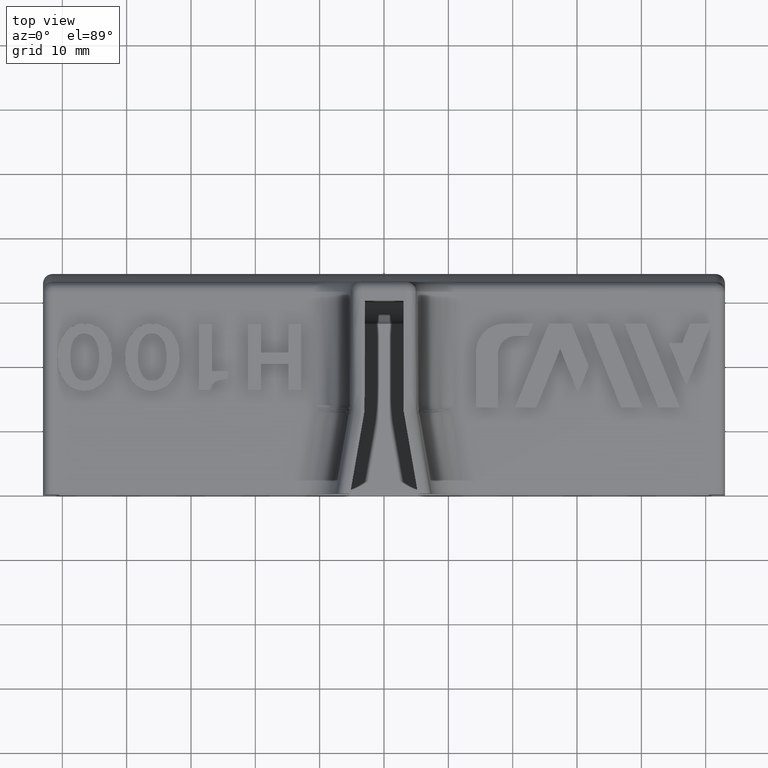
[diagram: clean part render]
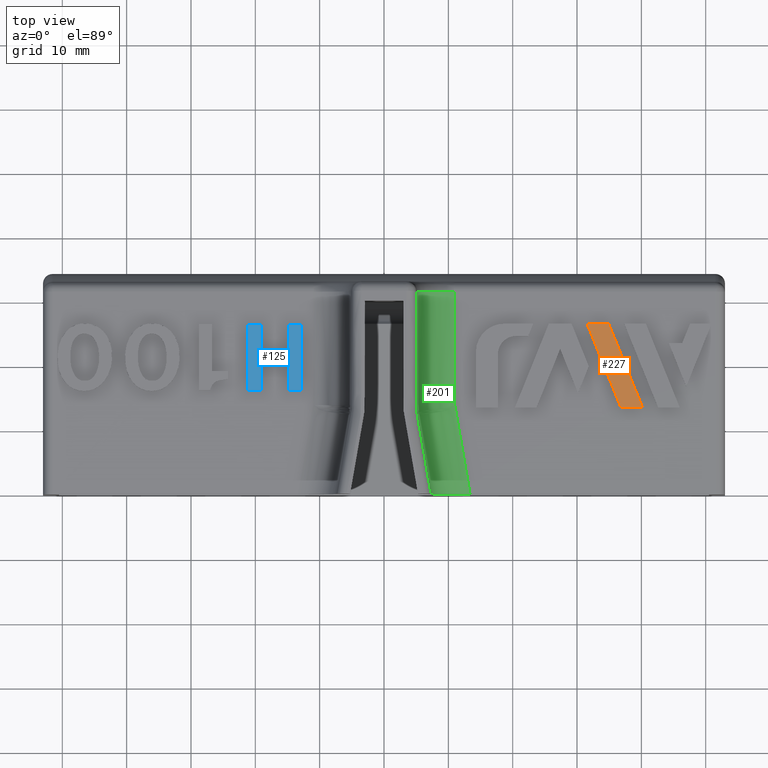
[diagram: same view with three faces highlighted in distinct colors, each labeled with its STEP entity id]
A machine part, top view with three faces highlighted in distinct colors.
Their STEP definitions:

[orange] entity #227 — the highlighted planar face has unit normal (0, 0, -1).
#227=ADVANCED_FACE('',(#478),#479,.F.);
#478=FACE_OUTER_BOUND('',#1583,.T.);
#479=PLANE('',#1584);
#1583=EDGE_LOOP('',(#2766,#2767,#2768,#2769));
#1584=AXIS2_PLACEMENT_3D('',#2770,#2771,#2772);
#2766=ORIENTED_EDGE('',*,*,#3131,.F.);
#2767=ORIENTED_EDGE('',*,*,#3140,.F.);
#2768=ORIENTED_EDGE('',*,*,#3137,.F.);
#2769=ORIENTED_EDGE('',*,*,#3134,.F.);
#2770=CARTESIAN_POINT('',(14.2878206641581,13.4986448545981,6.5005));
#2771=DIRECTION('',(2.84905114828971E-32,1.71410341203709E-16,-1.0));
#2772=DIRECTION('',(-1.0,3.05640636956162E-16,2.38994543834777E-32));
#3131=EDGE_CURVE('',#3590,#3592,#3593,.T.);
#3134=EDGE_CURVE('',#3592,#3597,#3598,.T.);
#3137=EDGE_CURVE('',#3597,#3602,#3603,.T.);
#3140=EDGE_CURVE('',#3602,#3590,#3606,.T.);
#3590=VERTEX_POINT('',#4913);
#3592=VERTEX_POINT('',#4916);
#3593=LINE('',#4917,#4918);
#3597=VERTEX_POINT('',#4924);
#3598=LINE('',#4925,#4926);
#3602=VERTEX_POINT('',#4932);
#3603=LINE('',#4933,#4934);
#3606=LINE('',#4939,#4940);
#4913=CARTESIAN_POINT('',(34.9240970111796,26.4941301454018,6.5005));
#4916=CARTESIAN_POINT('',(40.1751758170018,13.4986448545981,6.5005));
#4917=CARTESIAN_POINT('',(34.9240970111796,26.4941301454018,6.5005));
#4918=VECTOR('',#5274,1000.0);
#4924=CARTESIAN_POINT('',(36.8170544880509,13.4986448545981,6.5005));
#4925=CARTESIAN_POINT('',(40.1751758170018,13.4986448545981,6.5005));
#4926=VECTOR('',#5277,1000.0);
#4932=CARTESIAN_POINT('',(31.5659756822287,26.4941301454018,6.5005));
#4933=CARTESIAN_POINT('',(36.8170544880509,13.4986448545981,6.5005));
#4934=VECTOR('',#5280,1000.0);
#4939=CARTESIAN_POINT('',(31.5659756822287,26.4941301454018,6.5005));
#4940=VECTOR('',#5283,1000.0);
#5274=DIRECTION('',(0.37464105840902,-0.927169929060563,-1.58926513894091E-16));
#5277=DIRECTION('',(-1.0,4.66969920222005E-16,1.68621565400355E-31));
#5280=DIRECTION('',(-0.374641058409019,0.927169929060563,1.58926513894091E-16));
#5283=DIRECTION('',(1.0,-4.66969920222004E-16,2.85936609048986E-32));

[blue] entity #125 — the highlighted planar face has unit normal (0, 0, 1).
#125=ADVANCED_FACE('',(#262),#263,.T.);
#262=FACE_OUTER_BOUND('',#531,.T.);
#263=PLANE('',#532);
#531=EDGE_LOOP('',(#1744,#1745,#1746,#1747,#1748,#1749,#1750,#1751,#1752,#1753,#1754,#1755));
#532=AXIS2_PLACEMENT_3D('',#1756,#1757,#1758);
#1744=ORIENTED_EDGE('',*,*,#2905,.F.);
#1745=ORIENTED_EDGE('',*,*,#2906,.F.);
#1746=ORIENTED_EDGE('',*,*,#2907,.F.);
#1747=ORIENTED_EDGE('',*,*,#2908,.F.);
#1748=ORIENTED_EDGE('',*,*,#2909,.F.);
#1749=ORIENTED_EDGE('',*,*,#2910,.F.);
#1750=ORIENTED_EDGE('',*,*,#2911,.F.);
#1751=ORIENTED_EDGE('',*,*,#2912,.F.);
#1752=ORIENTED_EDGE('',*,*,#2913,.F.);
#1753=ORIENTED_EDGE('',*,*,#2914,.F.);
#1754=ORIENTED_EDGE('',*,*,#2915,.F.);
#1755=ORIENTED_EDGE('',*,*,#2916,.F.);
#1756=CARTESIAN_POINT('',(-13.875,16.15,6.5));
#1757=DIRECTION('',(1.43492962746861E-48,6.12323399573677E-17,1.0));
#1758=DIRECTION('',(1.22464679914735E-16,1.0,-6.12323399573677E-17));
#2905=EDGE_CURVE('',#3243,#3244,#3245,.T.);
#2906=EDGE_CURVE('',#3246,#3243,#3247,.T.);
#2907=EDGE_CURVE('',#3248,#3246,#3249,.T.);
#2908=EDGE_CURVE('',#3250,#3248,#3251,.T.);
#2909=EDGE_CURVE('',#3252,#3250,#3253,.T.);
#2910=EDGE_CURVE('',#3254,#3252,#3255,.T.);
#2911=EDGE_CURVE('',#3256,#3254,#3257,.T.);
#2912=EDGE_CURVE('',#3258,#3256,#3259,.T.);
#2913=EDGE_CURVE('',#3260,#3258,#3261,.T.);
#2914=EDGE_CURVE('',#3262,#3260,#3263,.T.);
#2915=EDGE_CURVE('',#3264,#3262,#3265,.T.);
#2916=EDGE_CURVE('',#3244,#3264,#3266,.T.);
#3243=VERTEX_POINT('',#3818);
#3244=VERTEX_POINT('',#3819);
#3245=B_SPLINE_CURVE_WITH_KNOTS('',2,(#3820,#3821,#3822),.UNSPECIFIED.,.F.,.F.,(3,3),(0.0,1.0),.UNSPECIFIED.);
#3246=VERTEX_POINT('',#3823);
#3247=B_SPLINE_CURVE_WITH_KNOTS('',2,(#3824,#3825,#3826),.UNSPECIFIED.,.F.,.F.,(3,3),(11.0,12.0),.UNSPECIFIED.);
#3248=VERTEX_POINT('',#3827);
#3249=B_SPLINE_CURVE_WITH_KNOTS('',2,(#3828,#3829,#3830),.UNSPECIFIED.,.F.,.F.,(3,3),(10.0,11.0),.UNSPECIFIED.);
#3250=VERTEX_POINT('',#3831);
#3251=B_SPLINE_CURVE_WITH_KNOTS('',2,(#3832,#3833,#3834),.UNSPECIFIED.,.F.,.F.,(3,3),(9.0,10.0),.UNSPECIFIED.);
#3252=VERTEX_POINT('',#3835);
#3253=B_SPLINE_CURVE_WITH_KNOTS('',2,(#3836,#3837,#3838),.UNSPECIFIED.,.F.,.F.,(3,3),(8.0,9.0),.UNSPECIFIED.);
#3254=VERTEX_POINT('',#3839);
#3255=B_SPLINE_CURVE_WITH_KNOTS('',2,(#3840,#3841,#3842),.UNSPECIFIED.,.F.,.F.,(3,3),(7.0,8.0),.UNSPECIFIED.);
#3256=VERTEX_POINT('',#3843);
#3257=B_SPLINE_CURVE_WITH_KNOTS('',2,(#3844,#3845,#3846),.UNSPECIFIED.,.F.,.F.,(3,3),(6.0,7.0),.UNSPECIFIED.);
#3258=VERTEX_POINT('',#3847);
#3259=B_SPLINE_CURVE_WITH_KNOTS('',2,(#3848,#3849,#3850),.UNSPECIFIED.,.F.,.F.,(3,3),(5.0,6.0),.UNSPECIFIED.);
#3260=VERTEX_POINT('',#3851);
#3261=B_SPLINE_CURVE_WITH_KNOTS('',2,(#3852,#3853,#3854),.UNSPECIFIED.,.F.,.F.,(3,3),(4.0,5.0),.UNSPECIFIED.);
#3262=VERTEX_POINT('',#3855);
#3263=B_SPLINE_CURVE_WITH_KNOTS('',2,(#3856,#3857,#3858),.UNSPECIFIED.,.F.,.F.,(3,3),(3.0,4.0),.UNSPECIFIED.);
#3264=VERTEX_POINT('',#3859);
#3265=B_SPLINE_CURVE_WITH_KNOTS('',2,(#3860,#3861,#3862),.UNSPECIFIED.,.F.,.F.,(3,3),(2.0,3.0),.UNSPECIFIED.);
#3266=B_SPLINE_CURVE_WITH_KNOTS('',2,(#3863,#3864,#3865),.UNSPECIFIED.,.F.,.F.,(3,3),(1.0,2.0),.UNSPECIFIED.);
#3818=CARTESIAN_POINT('',(-12.875,16.15,6.5));
#3819=CARTESIAN_POINT('',(-14.875,16.15,6.5));
#3820=CARTESIAN_POINT('',(-12.875,16.15,6.5));
#3821=CARTESIAN_POINT('',(-13.875,16.15,6.5));
#3822=CARTESIAN_POINT('',(-14.875,16.15,6.5));
#3823=CARTESIAN_POINT('',(-12.875,26.45,6.5));
#3824=CARTESIAN_POINT('',(-12.875,26.45,6.5));
#3825=CARTESIAN_POINT('',(-12.875,21.3,6.5));
#3826=CARTESIAN_POINT('',(-12.875,16.15,6.5));
#3827=CARTESIAN_POINT('',(-14.875,26.45,6.5));
#3828=CARTESIAN_POINT('',(-14.875,26.45,6.5));
#3829=CARTESIAN_POINT('',(-13.875,26.45,6.5));
#3830=CARTESIAN_POINT('',(-12.875,26.45,6.5));
#3831=CARTESIAN_POINT('',(-14.875,22.0,6.5));
#3832=CARTESIAN_POINT('',(-14.875,22.0,6.5));
#3833=CARTESIAN_POINT('',(-14.875,24.225,6.5));
#3834=CARTESIAN_POINT('',(-14.875,26.45,6.5));
#3835=CARTESIAN_POINT('',(-19.125,22.0,6.5));
#3836=CARTESIAN_POINT('',(-19.125,22.0,6.5));
#3837=CARTESIAN_POINT('',(-17.0,22.0,6.5));
#3838=CARTESIAN_POINT('',(-14.875,22.0,6.5));
#3839=CARTESIAN_POINT('',(-19.125,26.45,6.5));
#3840=CARTESIAN_POINT('',(-19.125,26.45,6.5));
#3841=CARTESIAN_POINT('',(-19.125,24.225,6.5));
#3842=CARTESIAN_POINT('',(-19.125,22.0,6.5));
#3843=CARTESIAN_POINT('',(-21.125,26.45,6.5));
#3844=CARTESIAN_POINT('',(-21.125,26.45,6.5));
#3845=CARTESIAN_POINT('',(-20.125,26.45,6.5));
#3846=CARTESIAN_POINT('',(-19.125,26.45,6.5));
#3847=CARTESIAN_POINT('',(-21.125,16.15,6.5));
#3848=CARTESIAN_POINT('',(-21.125,16.15,6.5));
#3849=CARTESIAN_POINT('',(-21.125,21.3,6.5));
#3850=CARTESIAN_POINT('',(-21.125,26.45,6.5));
#3851=CARTESIAN_POINT('',(-19.125,16.15,6.5));
#3852=CARTESIAN_POINT('',(-19.125,16.15,6.5));
#3853=CARTESIAN_POINT('',(-20.125,16.15,6.5));
#3854=CARTESIAN_POINT('',(-21.125,16.15,6.5));
#3855=CARTESIAN_POINT('',(-19.125,20.25,6.5));
#3856=CARTESIAN_POINT('',(-19.125,20.25,6.5));
#3857=CARTESIAN_POINT('',(-19.125,18.2,6.5));
#3858=CARTESIAN_POINT('',(-19.125,16.15,6.5));
#3859=CARTESIAN_POINT('',(-14.875,20.25,6.5));
#3860=CARTESIAN_POINT('',(-14.875,20.25,6.5));
#3861=CARTESIAN_POINT('',(-17.0,20.25,6.5));
#3862=CARTESIAN_POINT('',(-19.125,20.25,6.5));
#3863=CARTESIAN_POINT('',(-14.875,16.15,6.5));
#3864=CARTESIAN_POINT('',(-14.875,18.2,6.5));
#3865=CARTESIAN_POINT('',(-14.875,20.25,6.5));

[green] entity #201 — the highlighted face is a freeform B-spline surface patch.
#201=ADVANCED_FACE('',(#423,#424,#425,#426),#427,.F.);
#423=FACE_OUTER_BOUND('',#1399,.T.);
#424=FACE_BOUND('',#1400,.T.);
#425=FACE_BOUND('',#1401,.T.);
#426=FACE_BOUND('',#1402,.T.);
#427=B_SPLINE_SURFACE_WITH_KNOTS('',3,3,((#1403,#1404,#1405,#1406,#1407,#1408,#1409,#1410,#1411,#1412,#1413,#1414,#1415),(#1416,#1417,#1418,#1419,#1420,#1421,#1422,#1423,#1424,#1425,#1426,#1427,#1428),(#1429,#1430,#1431,#1432,#1433,#1434,#1435,#1436,#1437,#1438,#1439,#1440,#1441),(#1442,#1443,#1444,#1445,#1446,#1447,#1448,#1449,#1450,#1451,#1452,#1453,#1454),(#1455,#1456,#1457,#1458,#1459,#1460,#1461,#1462,#1463,#1464,#1465,#1466,#1467),(#1468,#1469,#1470,#1471,#1472,#1473,#1474,#1475,#1476,#1477,#1478,#1479,#1480),(#1481,#1482,#1483,#1484,#1485,#1486,#1487,#1488,#1489,#1490,#1491,#1492,#1493),(#1494,#1495,#1496,#1497,#1498,#1499,#1500,#1501,#1502,#1503,#1504,#1505,#1506),(#1507,#1508,#1509,#1510,#1511,#1512,#1513,#1514,#1515,#1516,#1517,#1518,#1519),(#1520,#1521,#1522,#1523,#1524,#1525,#1526,#1527,#1528,#1529,#1530,#1531,#1532)),.UNSPECIFIED.,.F.,.F.,.F.,(4,3,1,1,1,4),(4,3,1,1,1,3,4),(0.149957570990574,0.2,0.4,0.6,0.8,1.0),(0.0784309076444618,1.0,2.0,3.0,4.0,5.0,5.99544231735008),.UNSPECIFIED.);
#1399=EDGE_LOOP('',(#2551,#2552,#2553,#2554,#2555));
#1400=VERTEX_LOOP('',#2556);
#1401=VERTEX_LOOP('',#2557);
#1402=VERTEX_LOOP('',#2558);
#1403=CARTESIAN_POINT('',(5.0,31.5000000000002,12.5004242900943));
#1404=CARTESIAN_POINT('',(5.0,25.6249622117532,12.5004242900943));
#1405=CARTESIAN_POINT('',(5.0,19.7499244235062,12.5004242900943));
#1406=CARTESIAN_POINT('',(5.0,13.8748866352593,12.5004242900943));
#1407=CARTESIAN_POINT('',(5.0,13.7294425338559,12.5004242900943));
#1408=CARTESIAN_POINT('',(5.00634720316461,13.4385543310491,12.5004242900943));
#1409=CARTESIAN_POINT('',(5.0348914940124,13.0030526101796,12.5004242900942));
#1410=CARTESIAN_POINT('',(5.08240493528107,12.5692104749286,12.5004242900943));
#1411=CARTESIAN_POINT('',(5.12666636671682,12.2816393372819,12.5004242900943));
#1412=CARTESIAN_POINT('',(5.15192246987792,12.13840485859,12.5004242900943));
#1413=CARTESIAN_POINT('',(6.15020815793466,6.47684538512925,12.5004242900943));
#1414=CARTESIAN_POINT('',(7.14849384599138,0.81528591166856,12.5004242900943));
#1415=CARTESIAN_POINT('',(8.14677953404812,-4.84627356179215,12.5004242900943));
#1416=CARTESIAN_POINT('',(5.0,31.5000000000002,12.3336161933962));
#1417=CARTESIAN_POINT('',(5.0,25.6249622117532,12.3336161933962));
#1418=CARTESIAN_POINT('',(5.0,19.7499244235062,12.3336161933962));
#1419=CARTESIAN_POINT('',(5.0,13.8748866352593,12.3336161933962));
#1420=CARTESIAN_POINT('',(5.0,13.7294425338559,12.3336161933962));
#1421=CARTESIAN_POINT('',(5.00634720316461,13.4385543310491,12.3336161933962));
#1422=CARTESIAN_POINT('',(5.0348914940124,13.0030526101796,12.3336161933962));
#1423=CARTESIAN_POINT('',(5.08240493528107,12.5692104749286,12.3336161933962));
#1424=CARTESIAN_POINT('',(5.12666636671682,12.2816393372819,12.3336161933962));
#1425=CARTESIAN_POINT('',(5.15192246987792,12.13840485859,12.3336161933962));
#1426=CARTESIAN_POINT('',(6.15020815793466,6.47684538512925,12.3336161933962));
#1427=CARTESIAN_POINT('',(7.14849384599138,0.81528591166856,12.3336161933962));
#1428=CARTESIAN_POINT('',(8.14677953404812,-4.84627356179215,12.3336161933962));
#1429=CARTESIAN_POINT('',(5.0,31.5000000000002,12.1668080966981));
#1430=CARTESIAN_POINT('',(5.0,25.6249622117532,12.1668080966981));
#1431=CARTESIAN_POINT('',(5.0,19.7499244235062,12.1668080966981));
#1432=CARTESIAN_POINT('',(5.0,13.8748866352593,12.1668080966981));
#1433=CARTESIAN_POINT('',(5.0,13.7294425338559,12.1668080966981));
#1434=CARTESIAN_POINT('',(5.00634720316462,13.4385543310491,12.1668080966981));
#1435=CARTESIAN_POINT('',(5.0348914940124,13.0030526101796,12.1668080966981));
#1436=CARTESIAN_POINT('',(5.08240493528107,12.5692104749286,12.1668080966981));
#1437=CARTESIAN_POINT('',(5.12666636671682,12.2816393372819,12.1668080966981));
#1438=CARTESIAN_POINT('',(5.15192246987792,12.13840485859,12.1668080966981));
#1439=CARTESIAN_POINT('',(6.15020815793466,6.47684538512925,12.1668080966981));
#1440=CARTESIAN_POINT('',(7.14849384599138,0.81528591166856,12.1668080966981));
#1441=CARTESIAN_POINT('',(8.14677953404812,-4.84627356179215,12.1668080966981));
#1442=CARTESIAN_POINT('',(5.0,31.5000000000002,12.0));
#1443=CARTESIAN_POINT('',(5.0,25.6249622117532,12.0));
#1444=CARTESIAN_POINT('',(5.0,19.7499244235062,12.0));
#1445=CARTESIAN_POINT('',(5.0,13.8748866352593,12.0));
#1446=CARTESIAN_POINT('',(5.0,13.7294425338559,12.0));
#1447=CARTESIAN_POINT('',(5.00634720316462,13.4385543310491,12.0));
#1448=CARTESIAN_POINT('',(5.0348914940124,13.0030526101796,12.0));
#1449=CARTESIAN_POINT('',(5.08240493528107,12.5692104749286,12.0));
#1450=CARTESIAN_POINT('',(5.12666636671682,12.2816393372819,12.0));
#1451=CARTESIAN_POINT('',(5.15192246987792,12.13840485859,12.0));
#1452=CARTESIAN_POINT('',(6.15020815793466,6.47684538512925,12.0));
#1453=CARTESIAN_POINT('',(7.14849384599138,0.81528591166856,12.0));
#1454=CARTESIAN_POINT('',(8.14677953404812,-4.84627356179215,12.0));
#1455=CARTESIAN_POINT('',(5.0,31.5000000000002,11.21470752517));
#1456=CARTESIAN_POINT('',(5.0,25.6249622117532,11.21470752517));
#1457=CARTESIAN_POINT('',(5.0,19.7499244235062,11.21470752517));
#1458=CARTESIAN_POINT('',(5.0,13.8748866352593,11.21470752517));
#1459=CARTESIAN_POINT('',(5.0,13.7294425338559,11.21470752517));
#1460=CARTESIAN_POINT('',(5.00634720316462,13.4385543310491,11.21470752517));
#1461=CARTESIAN_POINT('',(5.0348914940124,13.0030526101796,11.21470752517));
#1462=CARTESIAN_POINT('',(5.08240493528107,12.5692104749286,11.21470752517));
#1463=CARTESIAN_POINT('',(5.12666636671682,12.2816393372819,11.21470752517));
#1464=CARTESIAN_POINT('',(5.15192246987792,12.13840485859,11.21470752517));
#1465=CARTESIAN_POINT('',(6.15020815793466,6.47684538512925,11.21470752517));
#1466=CARTESIAN_POINT('',(7.14849384599138,0.81528591166856,11.21470752517));
#1467=CARTESIAN_POINT('',(8.14677953404812,-4.84627356179215,11.21470752517));
#1468=CARTESIAN_POINT('',(5.31240877050773,31.5000000000002,9.64412257551003));
#1469=CARTESIAN_POINT('',(5.31240877050773,25.6249622117532,9.64412257551003));
#1470=CARTESIAN_POINT('',(5.31240877050773,19.7499244235062,9.64412257551003));
#1471=CARTESIAN_POINT('',(5.31240877050773,13.8748866352593,9.64412257551003));
#1472=CARTESIAN_POINT('',(5.31240877050773,13.7339870562709,9.64412257551002));
#1473=CARTESIAN_POINT('',(5.31855767700645,13.4521854254732,9.64412257551001));
#1474=CARTESIAN_POINT('',(5.34621023929833,13.0302894711352,9.64412257551002));
#1475=CARTESIAN_POINT('',(5.39223924519849,12.6100012472887,9.64412257551002));
#1476=CARTESIAN_POINT('',(5.43511809405756,12.3314130700598,9.64412257551001));
#1477=CARTESIAN_POINT('',(5.45958504918294,12.1926540722758,9.64412257551001));
#1478=CARTESIAN_POINT('',(6.45787073723968,6.53109459881508,9.64412257551003));
#1479=CARTESIAN_POINT('',(7.4561564252964,0.869535125354396,9.64412257551003));
#1480=CARTESIAN_POINT('',(8.45444211335314,-4.7920243481063,9.64412257551002));
#1481=CARTESIAN_POINT('',(6.64690613281663,31.5000000000002,7.64690613281662));
#1482=CARTESIAN_POINT('',(6.64690613281663,25.6249622117532,7.64690613281662));
#1483=CARTESIAN_POINT('',(6.64690613281663,19.7499244235062,7.64690613281662));
#1484=CARTESIAN_POINT('',(6.64690613281663,13.8748866352593,7.64690613281662));
#1485=CARTESIAN_POINT('',(6.64690613281663,13.7533996136257,7.64690613281662));
#1486=CARTESIAN_POINT('',(6.65220798762354,13.5104125345422,7.64690613281662));
#1487=CARTESIAN_POINT('',(6.6760514077975,13.146635497669,7.6469061328166));
#1488=CARTESIAN_POINT('',(6.71573944228198,12.7842446849257,7.64690613281664));
#1489=CARTESIAN_POINT('',(6.75271239804221,12.5440284681373,7.64690613281662));
#1490=CARTESIAN_POINT('',(6.7738083979591,12.424387107342,7.64690613281662));
#1491=CARTESIAN_POINT('',(7.77209408601583,6.76282763388135,7.64690613281663));
#1492=CARTESIAN_POINT('',(8.77037977407255,1.10126816042066,7.64690613281662));
#1493=CARTESIAN_POINT('',(9.76866546212929,-4.56029131304004,7.64690613281662));
#1494=CARTESIAN_POINT('',(8.64412257551004,31.5000000000002,6.31240877050772));
#1495=CARTESIAN_POINT('',(8.64412257551003,25.6249622117532,6.31240877050772));
#1496=CARTESIAN_POINT('',(8.64412257551003,19.7499244235062,6.31240877050772));
#1497=CARTESIAN_POINT('',(8.64412257551003,13.8748866352593,6.31240877050772));
#1498=CARTESIAN_POINT('',(8.64412257551003,13.7824525588309,6.31240877050771));
#1499=CARTESIAN_POINT('',(8.64815672787369,13.5975555615182,6.31240877050771));
#1500=CARTESIAN_POINT('',(8.66629936400318,13.3207596314427,6.31240877050771));
#1501=CARTESIAN_POINT('',(8.69649746412606,13.0450184177998,6.31240877050772));
#1502=CARTESIAN_POINT('',(8.72463162624088,12.8622298981315,6.31240877050771));
#1503=CARTESIAN_POINT('',(8.74068263516702,12.7712001030222,6.31240877050771));
#1504=CARTESIAN_POINT('',(9.73896832322375,7.10964062956149,6.31240877050772));
#1505=CARTESIAN_POINT('',(10.7372540112805,1.4480811561008,6.31240877050772));
#1506=CARTESIAN_POINT('',(11.7355396993372,-4.21347831735989,6.31240877050771));
#1507=CARTESIAN_POINT('',(10.21470752517,31.5000000000002,6.0));
#1508=CARTESIAN_POINT('',(10.21470752517,25.6249622117532,6.0));
#1509=CARTESIAN_POINT('',(10.21470752517,19.7499244235062,6.0));
#1510=CARTESIAN_POINT('',(10.21470752517,13.8748866352593,6.0));
#1511=CARTESIAN_POINT('',(10.21470752517,13.8052994158401,6.0));
#1512=CARTESIAN_POINT('',(10.217744772874,13.6660837008378,6.0));
#1513=CARTESIAN_POINT('',(10.2314043868182,13.4576885781665,6.0));
#1514=CARTESIAN_POINT('',(10.2541397263894,13.2500874786004,6.0));
#1515=CARTESIAN_POINT('',(10.2753231765154,13.1124593505965,6.0));
#1516=CARTESIAN_POINT('',(10.2874068703565,13.0439293174017,6.0));
#1517=CARTESIAN_POINT('',(11.2856925584132,7.38236984394105,6.0));
#1518=CARTESIAN_POINT('',(12.2839782464699,1.72081037048037,6.0));
#1519=CARTESIAN_POINT('',(13.2822639345266,-3.94074910298032,6.0));
#1520=CARTESIAN_POINT('',(11.0,31.5000000000002,6.0));
#1521=CARTESIAN_POINT('',(11.0,25.6249622117532,6.0));
#1522=CARTESIAN_POINT('',(11.0,19.7499244235062,6.0));
#1523=CARTESIAN_POINT('',(11.0,13.8748866352593,6.0));
#1524=CARTESIAN_POINT('',(11.0,13.8167228443447,6.0));
#1525=CARTESIAN_POINT('',(11.0025387953742,13.7003477704976,6.0));
#1526=CARTESIAN_POINT('',(11.0139568982257,13.5261530515284,6.0));
#1527=CARTESIAN_POINT('',(11.0329608575211,13.3526220090007,6.0));
#1528=CARTESIAN_POINT('',(11.0506689516526,13.237574076829,6.0));
#1529=CARTESIAN_POINT('',(11.0607689879512,13.1802939245915,6.0));
#1530=CARTESIAN_POINT('',(12.0590546760079,7.51873445113083,6.0));
#1531=CARTESIAN_POINT('',(13.0573403640646,1.85717497767014,6.0));
#1532=CARTESIAN_POINT('',(14.0556260521213,-3.80438449579055,6.0));
#2551=ORIENTED_EDGE('',*,*,#2961,.T.);
#2552=ORIENTED_EDGE('',*,*,#3054,.T.);
#2553=ORIENTED_EDGE('',*,*,#3080,.F.);
#2554=ORIENTED_EDGE('',*,*,#3017,.F.);
#2555=ORIENTED_EDGE('',*,*,#3016,.T.);
#2556=VERTEX_POINT('',#3081);
#2557=VERTEX_POINT('',#3082);
#2558=VERTEX_POINT('',#3083);
#2961=EDGE_CURVE('',#3332,#3340,#3342,.T.);
#3016=EDGE_CURVE('',#3434,#3332,#3435,.F.);
#3017=EDGE_CURVE('',#3434,#3436,#3437,.T.);
#3054=EDGE_CURVE('',#3340,#3480,#3482,.T.);
#3080=EDGE_CURVE('',#3436,#3480,#3511,.T.);
#3081=CARTESIAN_POINT('',(8.70389940580578,30.0,6.45672280493378));
#3082=CARTESIAN_POINT('',(6.75735931287896,30.0,7.75735931288246));
#3083=CARTESIAN_POINT('',(5.4567228049321,30.0,9.70389940580989));
#3332=VERTEX_POINT('',#4097);
#3340=VERTEX_POINT('',#4116);
#3342=B_SPLINE_CURVE_WITH_KNOTS('',3,(#4118,#4119,#4120,#4121,#4122,#4123,#4124,#4125,#4126,#4127),.UNSPECIFIED.,.F.,.F.,(4,1,1,1,3,4),(-5.99999999970416E-08,0.00234358795245836,0.00468723590491672,0.00703088385737508,0.00937453180983344,0.00996044379794804),.UNSPECIFIED.);
#3434=VERTEX_POINT('',#4408);
#3435=B_SPLINE_CURVE_WITH_KNOTS('',3,(#4409,#4410,#4411,#4412,#4413,#4414),.UNSPECIFIED.,.F.,.F.,(4,2,4),(0.013071817940745,0.166666666666668,0.167968749999993),.UNSPECIFIED.);
#3436=VERTEX_POINT('',#4415);
#3437=B_SPLINE_CURVE_WITH_KNOTS('',2,(#4416,#4417,#4418,#4419,#4420,#4421,#4422),.UNSPECIFIED.,.F.,.F.,(3,2,2,3),(0.0,0.5,0.75,1.0),.UNSPECIFIED.);
#3480=VERTEX_POINT('',#4518);
#3482=B_SPLINE_CURVE_WITH_KNOTS('',3,(#4533,#4534,#4535,#4536,#4537,#4538,#4539,#4540,#4541,#4542,#4543,#4544,#4545),.UNSPECIFIED.,.F.,.F.,(4,3,1,1,1,3,4),(0.0,0.00518421419874951,0.0108096352786803,0.0164350563586112,0.022060477438542,0.0276858985184728,0.0316878832326433),.UNSPECIFIED.);
#3511=B_SPLINE_CURVE_WITH_KNOTS('',3,(#4765,#4766,#4767,#4768,#4769,#4770,#4771,#4772,#4773,#4774,#4775,#4776,#4777,#4778,#4779,#4780,#4781,#4782,#4783,#4784,#4785,#4786,#4787,#4788,#4789,#4790,#4791,#4792),.UNSPECIFIED.,.F.,.F.,(4,2,2,2,2,2,2,2,2,2,2,2,2,4),(0.0,0.00124227150776066,0.00186340726164098,0.00248454301552131,0.00372681452328196,0.00434795027716229,0.00496908603104261,0.00621135753880326,0.00683249329268359,0.00745362904656392,0.00869590055432458,0.00931703630820491,0.00962760418514508,0.00993817206208524),.UNSPECIFIED.);
#4097=CARTESIAN_POINT('',(11.0,31.5,6.0));
#4116=CARTESIAN_POINT('',(5.0,31.5,12.5));
#4118=CARTESIAN_POINT('',(11.0,31.5,6.0));
#4119=CARTESIAN_POINT('',(10.21470752517,31.5,6.0));
#4120=CARTESIAN_POINT('',(8.64412257551003,31.5,6.31240877050772));
#4121=CARTESIAN_POINT('',(6.64690613281663,31.5,7.64690613281662));
#4122=CARTESIAN_POINT('',(5.31240877050773,31.5,9.64412257551003));
#4123=CARTESIAN_POINT('',(5.0,31.5,11.21470752517));
#4124=CARTESIAN_POINT('',(5.0,31.5,12.0));
#4125=CARTESIAN_POINT('',(5.0,31.5,12.1666666666667));
#4126=CARTESIAN_POINT('',(5.0,31.5,12.3333333333333));
#4127=CARTESIAN_POINT('',(5.0,31.5,12.5));
#4408=CARTESIAN_POINT('',(11.0,13.8735234171017,6.0));
#4409=CARTESIAN_POINT('',(11.0,31.5,6.0));
#4410=CARTESIAN_POINT('',(11.0,25.6249622117531,6.0));
#4411=CARTESIAN_POINT('',(11.0,19.7499244235061,6.0));
#4412=CARTESIAN_POINT('',(11.0,13.8744322306427,6.0));
#4413=CARTESIAN_POINT('',(11.0000000774779,13.8739778245769,6.0));
#4414=CARTESIAN_POINT('',(11.0000002324331,13.8735234171022,6.0));
#4415=CARTESIAN_POINT('',(13.3848104205245,-3.46944695195361E-15,6.0));
#4416=CARTESIAN_POINT('',(11.0000002324331,13.8735234171024,6.0));
#4417=CARTESIAN_POINT('',(11.0000710978569,13.6657100214101,6.0));
#4418=CARTESIAN_POINT('',(11.0217327430086,13.4584856697288,6.0));
#4419=CARTESIAN_POINT('',(11.0324860330858,13.3556152021783,6.0));
#4420=CARTESIAN_POINT('',(11.0487388745919,13.2523641041402,6.0));
#4421=CARTESIAN_POINT('',(11.0543792233512,13.216532080399,6.0));
#4422=CARTESIAN_POINT('',(13.3848104205245,-3.76150199676047E-15,6.0));
#4518=CARTESIAN_POINT('',(7.29225074921005,0.0,12.5));
#4533=CARTESIAN_POINT('',(5.0,31.5,12.5));
#4534=CARTESIAN_POINT('',(5.0,25.6249622117531,12.5));
#4535=CARTESIAN_POINT('',(5.0,19.7499244235061,12.5));
#4536=CARTESIAN_POINT('',(5.0,13.8748866352593,12.5));
#4537=CARTESIAN_POINT('',(5.0,13.7294425338559,12.5));
#4538=CARTESIAN_POINT('',(5.00634720316461,13.4385543310491,12.5));
#4539=CARTESIAN_POINT('',(5.0348914940124,13.0030526101796,12.5));
#4540=CARTESIAN_POINT('',(5.08240493528107,12.5692104749286,12.5));
#4541=CARTESIAN_POINT('',(5.12666636671682,12.2816393372819,12.5));
#4542=CARTESIAN_POINT('',(5.15192246987792,12.13840485859,12.5));
#4543=CARTESIAN_POINT('',(5.8653652296553,8.09226990572663,12.5));
#4544=CARTESIAN_POINT('',(6.57880798943268,4.04613495286331,12.5));
#4545=CARTESIAN_POINT('',(7.29225074921005,-1.23599047663348E-14,12.5));
#4765=CARTESIAN_POINT('',(13.3848104205245,-3.46944695195361E-15,6.0));
#4766=CARTESIAN_POINT('',(12.9647995879734,-3.41801045978452E-15,6.0));
#4767=CARTESIAN_POINT('',(12.5520381293931,-2.92260729124297E-17,6.04271824572248));
#4768=CARTESIAN_POINT('',(11.9431478481759,3.00967815577438E-17,6.16720682626725));
#4769=CARTESIAN_POINT('',(11.7419116954436,2.56815071650433E-15,6.21888129586383));
#4770=CARTESIAN_POINT('',(11.3430138349322,2.60176629411483E-15,6.3432932976663));
#4771=CARTESIAN_POINT('',(11.1454249157506,6.45198035778778E-15,6.41619233379186));
#4772=CARTESIAN_POINT('',(10.5718209487584,6.49211395704092E-15,6.66209277473401));
#4773=CARTESIAN_POINT('',(10.209927274536,9.67564576924176E-15,6.86303967374212));
#4774=CARTESIAN_POINT('',(9.69760447752283,9.69473111803714E-15,7.21953643165102));
#4775=CARTESIAN_POINT('',(9.53104547273346,-6.90945271288686E-15,7.34849331070349));
#4776=CARTESIAN_POINT('',(9.21450120854611,-6.90405929932135E-15,7.62101051123252));
#4777=CARTESIAN_POINT('',(9.06440277100282,-4.9553755371746E-15,7.76449156996175));
#4778=CARTESIAN_POINT('',(8.63827549887762,-4.95851662651759E-15,8.21629016476001));
#4779=CARTESIAN_POINT('',(8.38571289958132,-1.01293302295075E-14,8.54575171199048));
#4780=CARTESIAN_POINT('',(8.05688244878282,-1.01548382619712E-14,9.08289766435109));
#4781=CARTESIAN_POINT('',(7.95707469801923,3.21695107806705E-15,9.2669062698358));
#4782=CARTESIAN_POINT('',(7.77717835370135,3.19269328467332E-15,9.64490125475863));
#4783=CARTESIAN_POINT('',(7.69691397665491,-5.21541844760246E-15,9.83974734177479));
#4784=CARTESIAN_POINT('',(7.4896061818037,-5.26233115339068E-15,10.4301556984333));
#4785=CARTESIAN_POINT('',(7.39418560953647,1.66618055064326E-14,10.8331113856718));
#4786=CARTESIAN_POINT('',(7.31431955970781,1.65958750917394E-14,11.4513707550624));
#4787=CARTESIAN_POINT('',(7.29834860915688,-9.66775746485005E-15,11.6604770285402));
#4788=CARTESIAN_POINT('',(7.29136190717639,-9.70544699886335E-15,11.9752377240452));
#4789=CARTESIAN_POINT('',(7.29225074921005,6.27692893369192E-15,12.0801993201231));
#4790=CARTESIAN_POINT('',(7.29225074921005,6.25122482917051E-15,12.2900996600615));
#4791=CARTESIAN_POINT('',(7.29225074921005,-1.58215173066213E-14,12.3950498300308));
#4792=CARTESIAN_POINT('',(7.29225074921005,-1.5834369358882E-14,12.5));